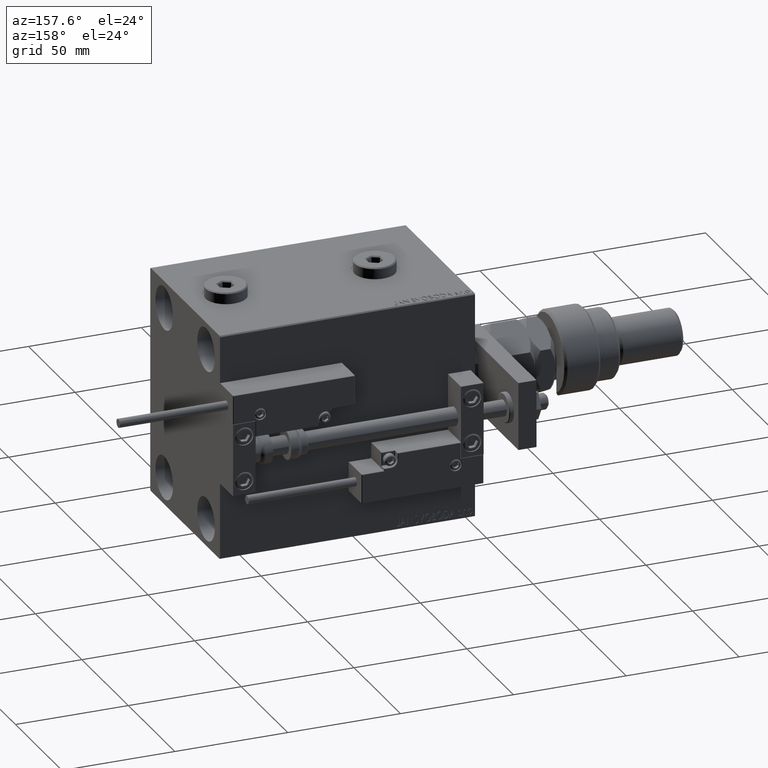
[diagram: clean part render]
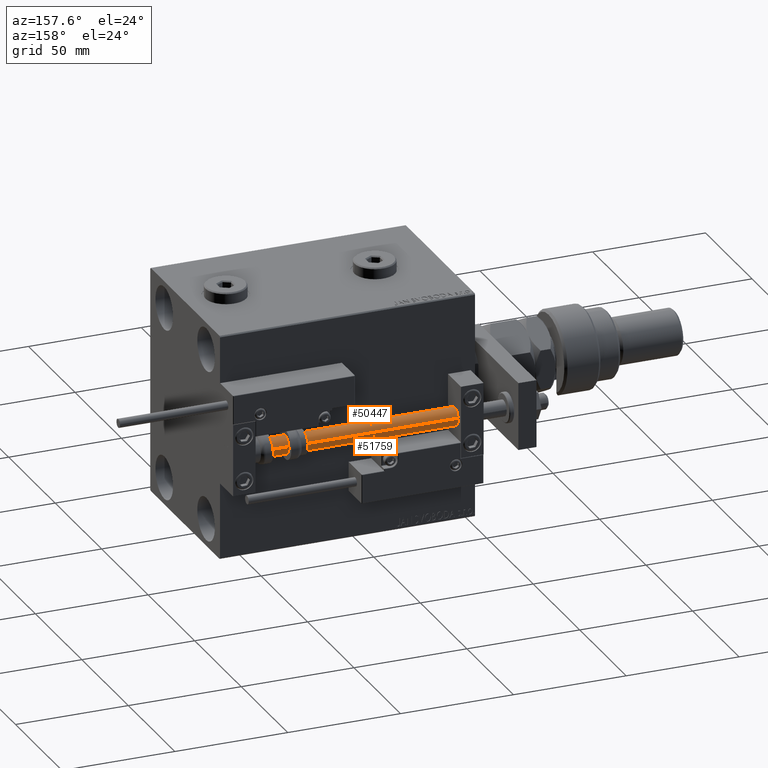
[diagram: same view with one multi-face feature highlighted, each face labeled with its STEP entity id]
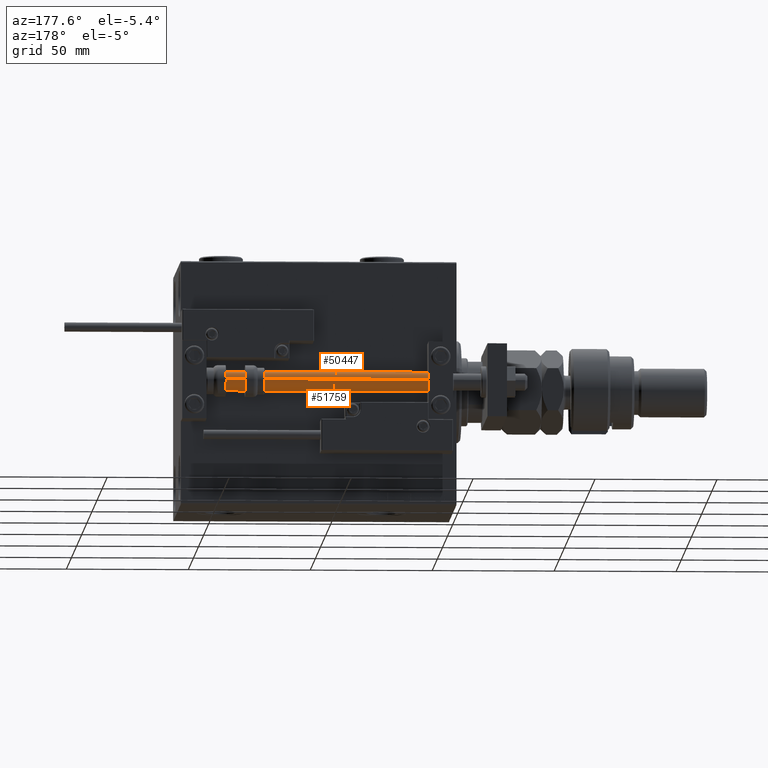
[diagram: same view with one multi-face feature highlighted, each face labeled with its STEP entity id]
A machine part, auxiliary view. The highlighted faces form ONE feature: a constant-radius fillet chain: 2 tangent blend faces with common blend radius 4 mm. The faces share edges in the B-rep.
A second angle (auxiliary view) of the same feature is appended — it is thin or edge-on in the first view.
Their STEP definitions:
[1] entity #51759 (Cylinder):
#2607 = LINE ( 'NONE', #32617, #8344 ) ;
#5519 = CARTESIAN_POINT ( 'NONE',  ( 4.000000000000000000, 4.898587196589412829E-16, 113.0000000000000000 ) ) ;
#8344 = VECTOR ( 'NONE', #19128, 1000.000000000000000 ) ;
#10692 = EDGE_LOOP ( 'NONE', ( #31392, #49302, #11492, #29272 ) ) ;
#10753 = CARTESIAN_POINT ( 'NONE',  ( -4.000000000000000000, 0.000000000000000000, 113.0000000000000000 ) ) ;
#11492 = ORIENTED_EDGE ( 'NONE', *, *, #28192, .T. ) ;
#13865 = DIRECTION ( 'NONE',  ( 1.000000000000000000, 0.000000000000000000, 0.000000000000000000 ) ) ;
#19128 = DIRECTION ( 'NONE',  ( -0.000000000000000000, -0.000000000000000000, -1.000000000000000000 ) ) ;
#20656 = CYLINDRICAL_SURFACE ( 'NONE', #33758, 4.000000000000000000 ) ;
#21695 = EDGE_CURVE ( 'NONE', #46139, #21700, #2607, .T. ) ;
#21700 = VERTEX_POINT ( 'NONE', #37017 ) ;
#23822 = EDGE_CURVE ( 'NONE', #38474, #21700, #33970, .T. ) ;
#25073 = FACE_OUTER_BOUND ( 'NONE', #10692, .T. ) ;
#28192 = EDGE_CURVE ( 'NONE', #43046, #38474, #40499, .T. ) ;
#29272 = ORIENTED_EDGE ( 'NONE', *, *, #23822, .T. ) ;
#30760 = CARTESIAN_POINT ( 'NONE',  ( 0.000000000000000000, 0.000000000000000000, 113.0000000000000000 ) ) ;
#31392 = ORIENTED_EDGE ( 'NONE', *, *, #21695, .F. ) ;
#32214 = AXIS2_PLACEMENT_3D ( 'NONE', #34808, #33978, #13865 ) ;
#32617 = CARTESIAN_POINT ( 'NONE',  ( 4.000000000000000000, 4.898587196589412829E-16, 113.0000000000000000 ) ) ;
#33758 = AXIS2_PLACEMENT_3D ( 'NONE', #37470, #41872, #38011 ) ;
#33970 = CIRCLE ( 'NONE', #32214, 4.000000000000000000 ) ;
#33978 = DIRECTION ( 'NONE',  ( -0.000000000000000000, -0.000000000000000000, 1.000000000000000000 ) ) ;
#34808 = CARTESIAN_POINT ( 'NONE',  ( 0.000000000000000000, 0.000000000000000000, 2.000000000000029310 ) ) ;
#36526 = CARTESIAN_POINT ( 'NONE',  ( -4.000000000000000000, 0.000000000000000000, 113.0000000000000000 ) ) ;
#37017 = CARTESIAN_POINT ( 'NONE',  ( 4.000000000000000000, 4.898587196589412829E-16, 2.000000000000029310 ) ) ;
#37470 = CARTESIAN_POINT ( 'NONE',  ( 0.000000000000000000, 0.000000000000000000, 113.0000000000000000 ) ) ;
#38011 = DIRECTION ( 'NONE',  ( -1.000000000000000000, 0.000000000000000000, 0.000000000000000000 ) ) ;
#38474 = VERTEX_POINT ( 'NONE', #51556 ) ;
#39296 = DIRECTION ( 'NONE',  ( 0.000000000000000000, 0.000000000000000000, 1.000000000000000000 ) ) ;
#40499 = LINE ( 'NONE', #10753, #50838 ) ;
#40953 = EDGE_CURVE ( 'NONE', #43046, #46139, #44043, .T. ) ;
#41872 = DIRECTION ( 'NONE',  ( -0.000000000000000000, -0.000000000000000000, -1.000000000000000000 ) ) ;
#43046 = VERTEX_POINT ( 'NONE', #36526 ) ;
#44043 = CIRCLE ( 'NONE', #45810, 4.000000000000000000 ) ;
#45810 = AXIS2_PLACEMENT_3D ( 'NONE', #30760, #39296, #47569 ) ;
#46139 = VERTEX_POINT ( 'NONE', #5519 ) ;
#47569 = DIRECTION ( 'NONE',  ( 1.000000000000000000, 0.000000000000000000, 0.000000000000000000 ) ) ;
#47950 = DIRECTION ( 'NONE',  ( -0.000000000000000000, -0.000000000000000000, -1.000000000000000000 ) ) ;
#49302 = ORIENTED_EDGE ( 'NONE', *, *, #40953, .F. ) ;
#50838 = VECTOR ( 'NONE', #47950, 1000.000000000000000 ) ;
#51556 = CARTESIAN_POINT ( 'NONE',  ( -4.000000000000000000, 0.000000000000000000, 2.000000000000029310 ) ) ;
#51759 = ADVANCED_FACE ( 'NONE', ( #25073 ), #20656, .T. ) ;
[2] entity #50447 (Cylinder):
#1061 = DIRECTION ( 'NONE',  ( -0.000000000000000000, -0.000000000000000000, 1.000000000000000000 ) ) ;
#1771 = FACE_OUTER_BOUND ( 'NONE', #15818, .T. ) ;
#2607 = LINE ( 'NONE', #32617, #8344 ) ;
#3591 = AXIS2_PLACEMENT_3D ( 'NONE', #26686, #1061, #26414 ) ;
#5519 = CARTESIAN_POINT ( 'NONE',  ( 4.000000000000000000, 4.898587196589412829E-16, 113.0000000000000000 ) ) ;
#6355 = CIRCLE ( 'NONE', #25683, 4.000000000000000000 ) ;
#7947 = ORIENTED_EDGE ( 'NONE', *, *, #28192, .F. ) ;
#8344 = VECTOR ( 'NONE', #19128, 1000.000000000000000 ) ;
#9140 = EDGE_CURVE ( 'NONE', #21700, #38474, #21187, .T. ) ;
#10753 = CARTESIAN_POINT ( 'NONE',  ( -4.000000000000000000, 0.000000000000000000, 113.0000000000000000 ) ) ;
#11414 = EDGE_CURVE ( 'NONE', #46139, #43046, #6355, .T. ) ;
#13900 = CYLINDRICAL_SURFACE ( 'NONE', #38996, 4.000000000000000000 ) ;
#14708 = DIRECTION ( 'NONE',  ( -1.000000000000000000, 0.000000000000000000, 0.000000000000000000 ) ) ;
#15818 = EDGE_LOOP ( 'NONE', ( #47901, #50957, #44108, #7947 ) ) ;
#18574 = DIRECTION ( 'NONE',  ( -0.000000000000000000, -0.000000000000000000, -1.000000000000000000 ) ) ;
#19128 = DIRECTION ( 'NONE',  ( -0.000000000000000000, -0.000000000000000000, -1.000000000000000000 ) ) ;
#21187 = CIRCLE ( 'NONE', #3591, 4.000000000000000000 ) ;
#21695 = EDGE_CURVE ( 'NONE', #46139, #21700, #2607, .T. ) ;
#21700 = VERTEX_POINT ( 'NONE', #37017 ) ;
#22499 = DIRECTION ( 'NONE',  ( 0.000000000000000000, 0.000000000000000000, 1.000000000000000000 ) ) ;
#25683 = AXIS2_PLACEMENT_3D ( 'NONE', #26907, #22499, #48115 ) ;
#26414 = DIRECTION ( 'NONE',  ( 1.000000000000000000, 0.000000000000000000, 0.000000000000000000 ) ) ;
#26686 = CARTESIAN_POINT ( 'NONE',  ( 0.000000000000000000, 0.000000000000000000, 2.000000000000029310 ) ) ;
#26907 = CARTESIAN_POINT ( 'NONE',  ( 0.000000000000000000, 0.000000000000000000, 113.0000000000000000 ) ) ;
#28192 = EDGE_CURVE ( 'NONE', #43046, #38474, #40499, .T. ) ;
#32617 = CARTESIAN_POINT ( 'NONE',  ( 4.000000000000000000, 4.898587196589412829E-16, 113.0000000000000000 ) ) ;
#36526 = CARTESIAN_POINT ( 'NONE',  ( -4.000000000000000000, 0.000000000000000000, 113.0000000000000000 ) ) ;
#37017 = CARTESIAN_POINT ( 'NONE',  ( 4.000000000000000000, 4.898587196589412829E-16, 2.000000000000029310 ) ) ;
#38474 = VERTEX_POINT ( 'NONE', #51556 ) ;
#38996 = AXIS2_PLACEMENT_3D ( 'NONE', #52461, #18574, #14708 ) ;
#40499 = LINE ( 'NONE', #10753, #50838 ) ;
#43046 = VERTEX_POINT ( 'NONE', #36526 ) ;
#44108 = ORIENTED_EDGE ( 'NONE', *, *, #9140, .T. ) ;
#46139 = VERTEX_POINT ( 'NONE', #5519 ) ;
#47901 = ORIENTED_EDGE ( 'NONE', *, *, #11414, .F. ) ;
#47950 = DIRECTION ( 'NONE',  ( -0.000000000000000000, -0.000000000000000000, -1.000000000000000000 ) ) ;
#48115 = DIRECTION ( 'NONE',  ( 1.000000000000000000, 0.000000000000000000, 0.000000000000000000 ) ) ;
#50447 = ADVANCED_FACE ( 'NONE', ( #1771 ), #13900, .T. ) ;
#50838 = VECTOR ( 'NONE', #47950, 1000.000000000000000 ) ;
#50957 = ORIENTED_EDGE ( 'NONE', *, *, #21695, .T. ) ;
#51556 = CARTESIAN_POINT ( 'NONE',  ( -4.000000000000000000, 0.000000000000000000, 2.000000000000029310 ) ) ;
#52461 = CARTESIAN_POINT ( 'NONE',  ( 0.000000000000000000, 0.000000000000000000, 113.0000000000000000 ) ) ;